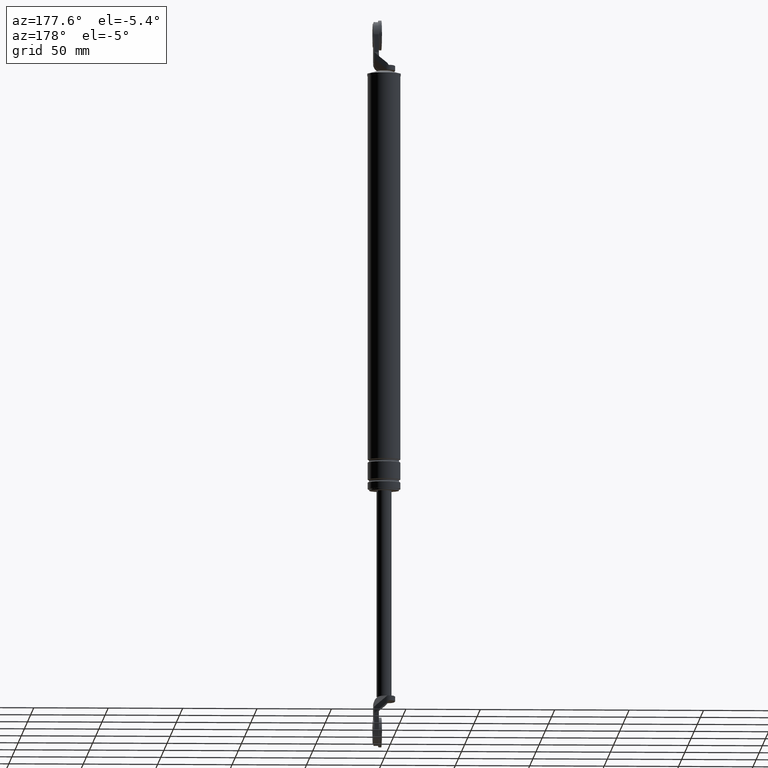
[diagram: clean part render]
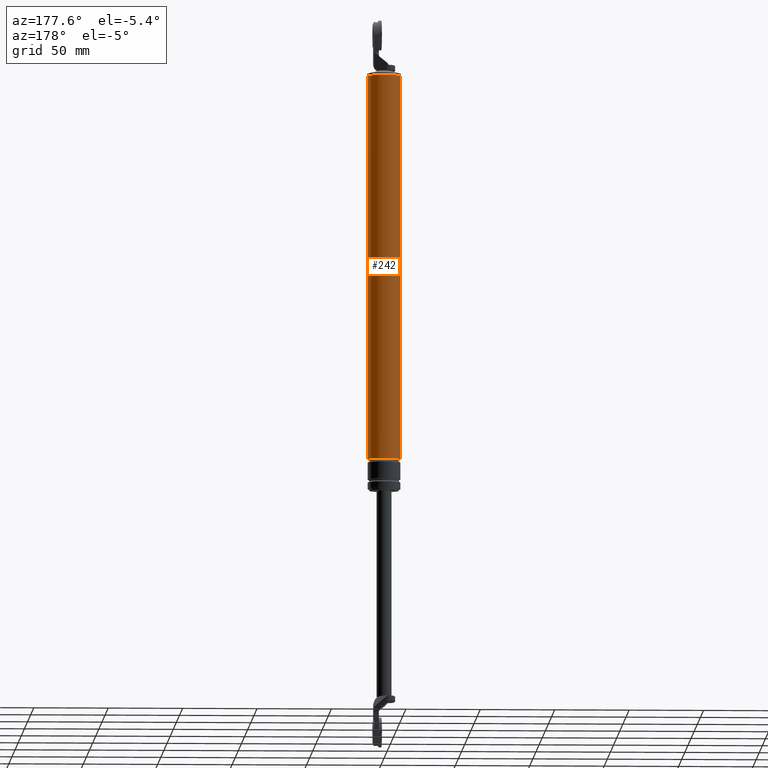
[diagram: same view with one face highlighted and labeled with its STEP entity id]
A machine part, auxiliary view. The second image highlights one B-rep face of the part: STEP entity #242.
In plain terms, the highlighted cylindrical surface (edge-blend (fillet) strip) has radius 11 mm, axis along (0, 0, 1).
Its self-contained STEP definition (entity closure, byte-faithful):
#242=ADVANCED_FACE('',(#676),#675,.T.);
#675=CYLINDRICAL_SURFACE('',#1399,1.10000000000E+001);
#676=FACE_OUTER_BOUND('',#1400,.T.);
#1396=CARTESIAN_POINT('',(0.00000000000E+000,3.58204186421E-014,0.00000000000E+000));
#1397=DIRECTION('',(-0.00000000000E+000,-0.00000000000E+000,1.00000000000E+000));
#1398=DIRECTION('',(-1.00000000000E+000,1.22464679915E-016,0.00000000000E+000));
#1399=AXIS2_PLACEMENT_3D('',#1396,#1397,#1398);
#1400=EDGE_LOOP('',(#1946,#1947,#1948,#1949));
#1946=ORIENTED_EDGE('',*,*,#2261,.F.);
#1947=ORIENTED_EDGE('',*,*,#2258,.T.);
#1948=ORIENTED_EDGE('',*,*,#2250,.F.);
#1949=ORIENTED_EDGE('',*,*,#2260,.F.);
#2250=EDGE_CURVE('',#2971,#2972,#2973,.T.);
#2258=EDGE_CURVE('',#3027,#2972,#3028,.T.);
#2260=EDGE_CURVE('',#3034,#2971,#3041,.T.);
#2261=EDGE_CURVE('',#3027,#3034,#3047,.T.);
#2971=VERTEX_POINT('',#4050);
#2972=VERTEX_POINT('',#4051);
#2973=CIRCLE('',#4055,1.10000000000E+001);
#3027=VERTEX_POINT('',#4090);
#3028=(BOUNDED_CURVE() B_SPLINE_CURVE(1,(#4091,#4092),.UNSPECIFIED.,.F.,.F.) B_SPLINE_CURVE_WITH_KNOTS((2,2),(3.58937525193E-002,9.64106247373E-001),.UNSPECIFIED.) CURVE() GEOMETRIC_REPRESENTATION_ITEM() RATIONAL_B_SPLINE_CURVE((1.00000000000E+000,1.00000000000E+000)) REPRESENTATION_ITEM('') );
#3034=VERTEX_POINT('',#4093);
#3041=(BOUNDED_CURVE() B_SPLINE_CURVE(1,(#4098,#4099),.UNSPECIFIED.,.F.,.F.) B_SPLINE_CURVE_WITH_KNOTS((2,2),(3.58937525542E-002,9.64106247446E-001),.UNSPECIFIED.) CURVE() GEOMETRIC_REPRESENTATION_ITEM() RATIONAL_B_SPLINE_CURVE((7.50000000000E-001,7.50000000000E-001)) REPRESENTATION_ITEM('') );
#3047=CIRCLE('',#4103,1.10000000000E+001);
#4050=CARTESIAN_POINT('',(1.10000000000E+001,3.58204186421E-014,8.56000000000E+001));
#4051=CARTESIAN_POINT('',(-1.10000000000E+001,3.61192557345E-014,8.56000000000E+001));
#4052=CARTESIAN_POINT('',(0.00000000000E+000,3.58204186421E-014,8.56000000000E+001));
#4053=DIRECTION('',(0.00000000000E+000,0.00000000000E+000,1.00000000000E+000));
#4054=DIRECTION('',(1.00000000000E+000,-1.22460635382E-016,0.00000000000E+000));
#4055=AXIS2_PLACEMENT_3D('',#4052,#4053,#4054);
#4090=CARTESIAN_POINT('',(-1.10000000000E+001,3.58204186421E-014,-1.73000015000E+002));
#4091=CARTESIAN_POINT('',(-1.10000000000E+001,3.71675301212E-014,-1.73000015010E+002));
#4092=CARTESIAN_POINT('',(-1.10000000000E+001,3.71675301212E-014,8.55999999798E+001));
#4093=CARTESIAN_POINT('',(1.10000000000E+001,3.61192557345E-014,-1.73000015000E+002));
#4098=CARTESIAN_POINT('',(1.10000000000E+001,3.49350178415E-014,-1.73000015000E+002));
#4099=CARTESIAN_POINT('',(1.10000000000E+001,3.49350178415E-014,8.56000000000E+001));
#4100=CARTESIAN_POINT('',(0.00000000000E+000,3.58204186421E-014,-1.73000015000E+002));
#4101=DIRECTION('',(-0.00000000000E+000,0.00000000000E+000,-1.00000000000E+000));
#4102=DIRECTION('',(-1.00000000000E+000,-1.22460635382E-016,0.00000000000E+000));
#4103=AXIS2_PLACEMENT_3D('',#4100,#4101,#4102);